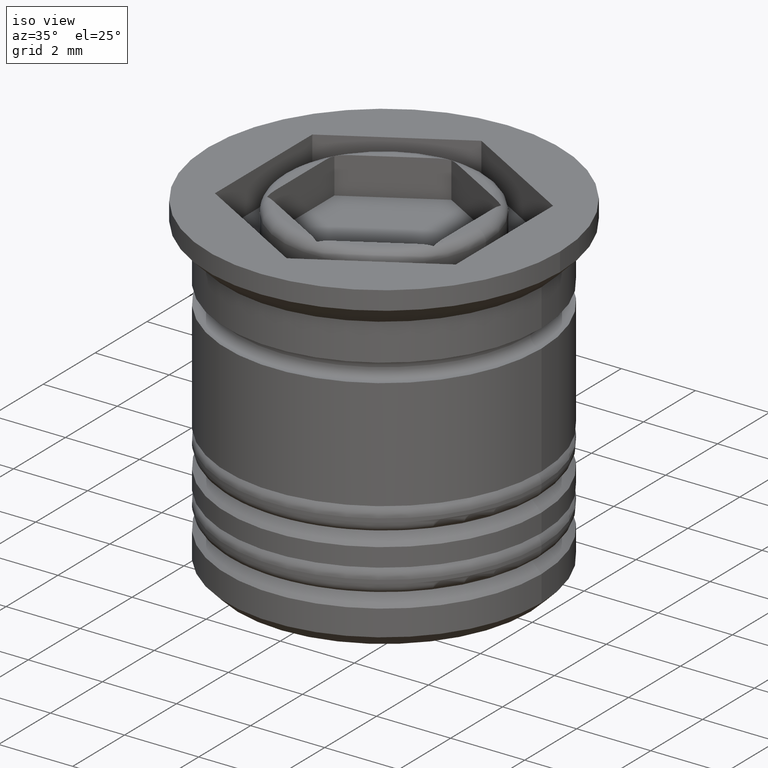
[diagram: clean part render]
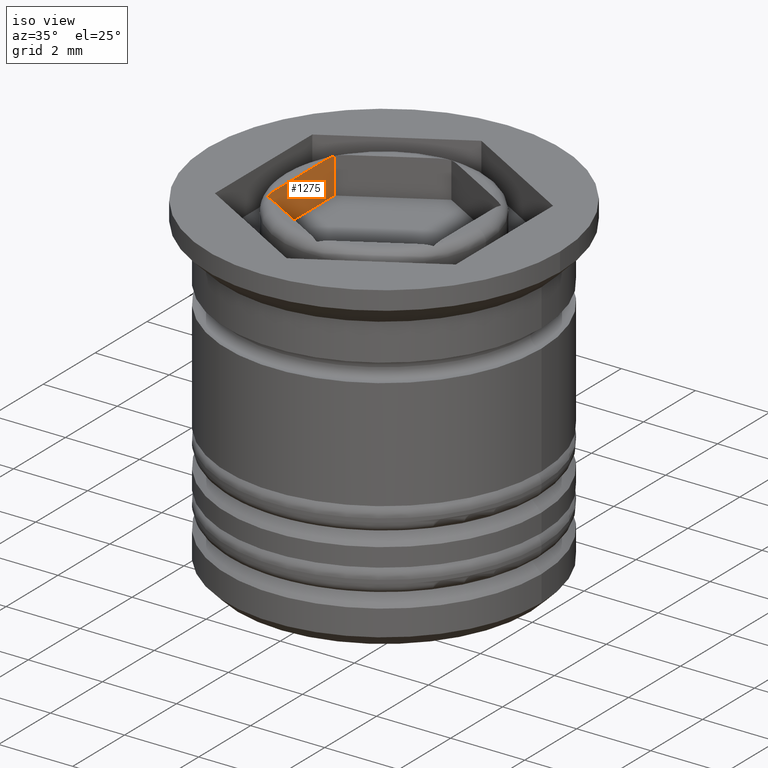
[diagram: same view with one face highlighted and labeled with its STEP entity id]
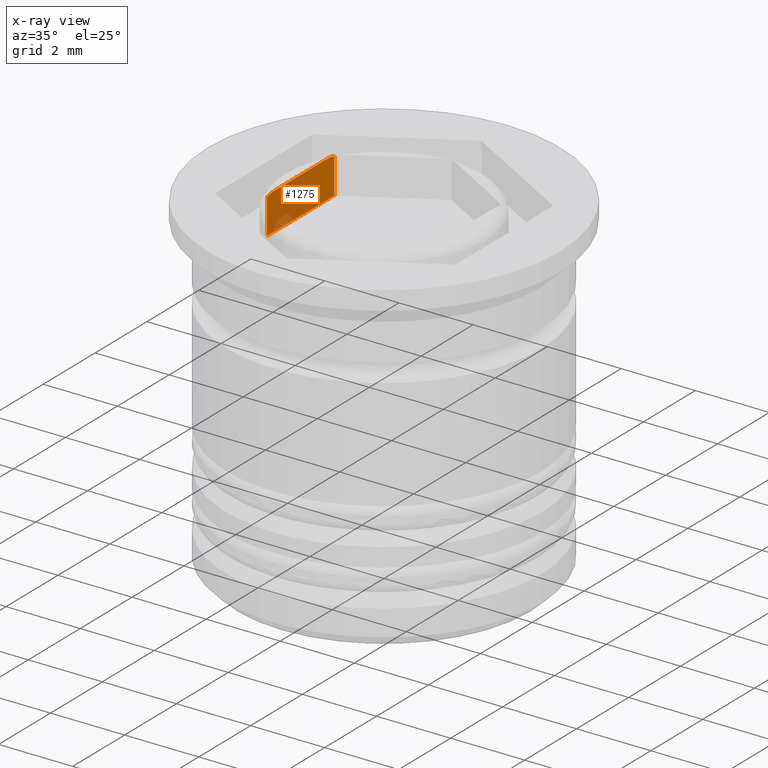
[diagram: x-ray of the same camera — body ghosted, the highlighted face saturated]
A machine part, iso view. The second image highlights one B-rep face of the part: STEP entity #1275.
The next image is the same camera in x-ray: the body ghosted, the highlighted face saturated — about 6% of this face is hidden behind the body in this view.
In plain terms, the highlighted planar face has unit normal (-1, 0, -0).
Its self-contained STEP definition (entity closure, byte-faithful):
#23 = DIRECTION ( 'NONE',  ( 0.000000000000000000, -1.000000000000000000, 0.000000000000000000 ) ) ;
#33 = CARTESIAN_POINT ( 'NONE',  ( -2.249999999999999556, 1.299038105676657340, -0.03909113539159181361 ) ) ;
#66 = ORIENTED_EDGE ( 'NONE', *, *, #518, .T. ) ;
#76 = ORIENTED_EDGE ( 'NONE', *, *, #1169, .F. ) ;
#91 = VECTOR ( 'NONE', #1892, 1000.000000000000000 ) ;
#109 = VERTEX_POINT ( 'NONE', #723 ) ;
#185 = CARTESIAN_POINT ( 'NONE',  ( -2.249999999999999556, 1.299038105676657340, -1.000000000000000000 ) ) ;
#203 = ORIENTED_EDGE ( 'NONE', *, *, #270, .T. ) ;
#206 = VERTEX_POINT ( 'NONE', #1345 ) ;
#270 = EDGE_CURVE ( 'NONE', #1316, #688, #335, .T. ) ;
#335 = LINE ( 'NONE', #1913, #91 ) ;
#341 = CARTESIAN_POINT ( 'NONE',  ( -2.249999999999999556, -1.299038105676657784, -1.000000000000000000 ) ) ;
#350 = B_SPLINE_CURVE_WITH_KNOTS ( 'NONE', 3,
 ( #33, #1800, #1426, #1751 ),
 .UNSPECIFIED., .F., .F.,
 ( 4, 4 ),
 ( 1.355252715606880392E-20, 0.0003318128588590305125 ),
 .UNSPECIFIED. ) ;
#442 = CARTESIAN_POINT ( 'NONE',  ( -2.249999999999999556, -1.080915900856332712, 0.000000000000000000 ) ) ;
#449 = AXIS2_PLACEMENT_3D ( 'NONE', #1814, #607, #1564 ) ;
#458 = CARTESIAN_POINT ( 'NONE',  ( -2.249999999999999556, -1.299038105676658228, -0.03909113539159181361 ) ) ;
#477 = VECTOR ( 'NONE', #1649, 1000.000000000000000 ) ;
#518 = EDGE_CURVE ( 'NONE', #206, #949, #1572, .T. ) ;
#551 = B_SPLINE_CURVE_WITH_KNOTS ( 'NONE', 3,
 ( #1027, #442, #1992, #1046 ),
 .UNSPECIFIED., .F., .F.,
 ( 4, 4 ),
 ( 1.091596556667333610E-19, 0.0003318128588590312715 ),
 .UNSPECIFIED. ) ;
#552 = VECTOR ( 'NONE', #1847, 1000.000000000000000 ) ;
#607 = DIRECTION ( 'NONE',  ( -1.000000000000000000, 0.000000000000000000, -0.000000000000000000 ) ) ;
#651 = EDGE_CURVE ( 'NONE', #688, #109, #1313, .T. ) ;
#688 = VERTEX_POINT ( 'NONE', #185 ) ;
#689 = LINE ( 'NONE', #1706, #552 ) ;
#723 = CARTESIAN_POINT ( 'NONE',  ( -2.249999999999999556, 1.299038105676657340, -0.03909113539159181361 ) ) ;
#949 = VERTEX_POINT ( 'NONE', #2028 ) ;
#1027 = CARTESIAN_POINT ( 'NONE',  ( -2.249999999999999556, -0.9695359714832667564, 0.000000000000000000 ) ) ;
#1046 = CARTESIAN_POINT ( 'NONE',  ( -2.249999999999999556, -1.299038105676658228, -0.03909113539159181361 ) ) ;
#1116 = EDGE_CURVE ( 'NONE', #109, #206, #350, .T. ) ;
#1169 = EDGE_CURVE ( 'NONE', #1316, #1274, #689, .T. ) ;
#1184 = PLANE ( 'NONE',  #449 ) ;
#1274 = VERTEX_POINT ( 'NONE', #458 ) ;
#1275 = ADVANCED_FACE ( 'NONE', ( #2020 ), #1184, .F. ) ;
#1313 = LINE ( 'NONE', #1619, #477 ) ;
#1316 = VERTEX_POINT ( 'NONE', #341 ) ;
#1345 = CARTESIAN_POINT ( 'NONE',  ( -2.249999999999999556, 0.9695359714832668674, 0.000000000000000000 ) ) ;
#1351 = ORIENTED_EDGE ( 'NONE', *, *, #1116, .T. ) ;
#1426 = CARTESIAN_POINT ( 'NONE',  ( -2.249999999999999556, 1.080915900856332712, 2.962634858630477215E-17 ) ) ;
#1428 = CARTESIAN_POINT ( 'NONE',  ( -2.249999999999999556, 1.299038105676657340, 0.000000000000000000 ) ) ;
#1497 = ORIENTED_EDGE ( 'NONE', *, *, #1929, .T. ) ;
#1564 = DIRECTION ( 'NONE',  ( -0.000000000000000000, 0.000000000000000000, 1.000000000000000000 ) ) ;
#1572 = LINE ( 'NONE', #1428, #1991 ) ;
#1619 = CARTESIAN_POINT ( 'NONE',  ( -2.249999999999999556, 1.299038105676657340, -7.873863542433759299 ) ) ;
#1649 = DIRECTION ( 'NONE',  ( -0.000000000000000000, -0.000000000000000000, 1.000000000000000000 ) ) ;
#1706 = CARTESIAN_POINT ( 'NONE',  ( -2.249999999999999556, -1.299038105676658228, -7.873863542433759299 ) ) ;
#1751 = CARTESIAN_POINT ( 'NONE',  ( -2.249999999999999556, 0.9695359714832668674, 0.000000000000000000 ) ) ;
#1800 = CARTESIAN_POINT ( 'NONE',  ( -2.249999999999999556, 1.191285726126103395, -0.008514243816639992940 ) ) ;
#1814 = CARTESIAN_POINT ( 'NONE',  ( -2.249999999999999556, 1.299038105676657340, -7.873863542433759299 ) ) ;
#1847 = DIRECTION ( 'NONE',  ( -0.000000000000000000, -0.000000000000000000, 1.000000000000000000 ) ) ;
#1892 = DIRECTION ( 'NONE',  ( 0.000000000000000000, 1.000000000000000000, 0.000000000000000000 ) ) ;
#1913 = CARTESIAN_POINT ( 'NONE',  ( -2.249999999999999556, 1.299038105676657340, -1.000000000000000000 ) ) ;
#1929 = EDGE_CURVE ( 'NONE', #949, #1274, #551, .T. ) ;
#1941 = EDGE_LOOP ( 'NONE', ( #1972, #1351, #66, #1497, #76, #203 ) ) ;
#1972 = ORIENTED_EDGE ( 'NONE', *, *, #651, .T. ) ;
#1991 = VECTOR ( 'NONE', #23, 1000.000000000000000 ) ;
#1992 = CARTESIAN_POINT ( 'NONE',  ( -2.249999999999999556, -1.191285726126103395, -0.008514243816631157993 ) ) ;
#2020 = FACE_OUTER_BOUND ( 'NONE', #1941, .T. ) ;
#2028 = CARTESIAN_POINT ( 'NONE',  ( -2.249999999999999556, -0.9695359714832667564, 0.000000000000000000 ) ) ;